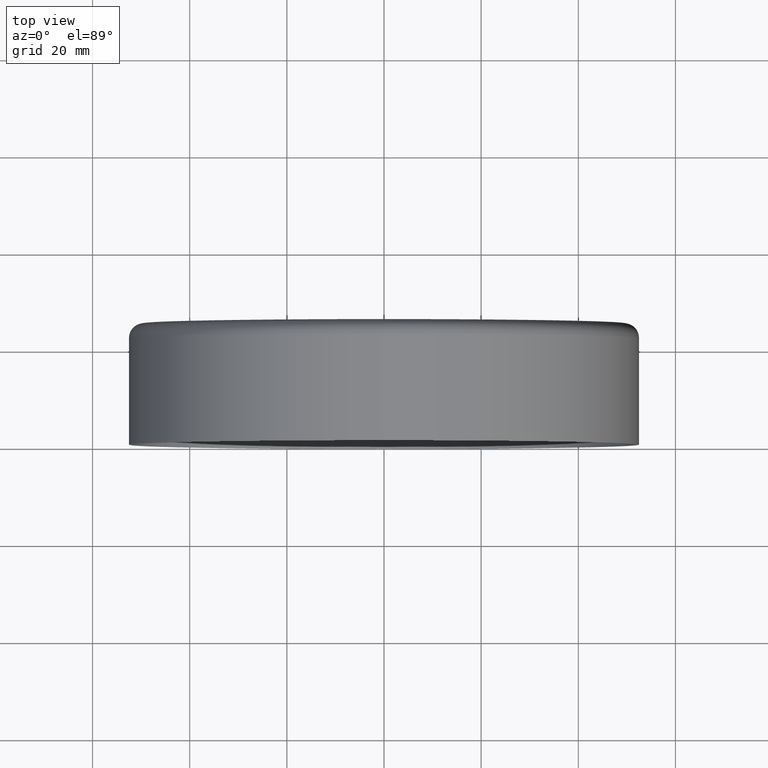
[diagram: clean part render]
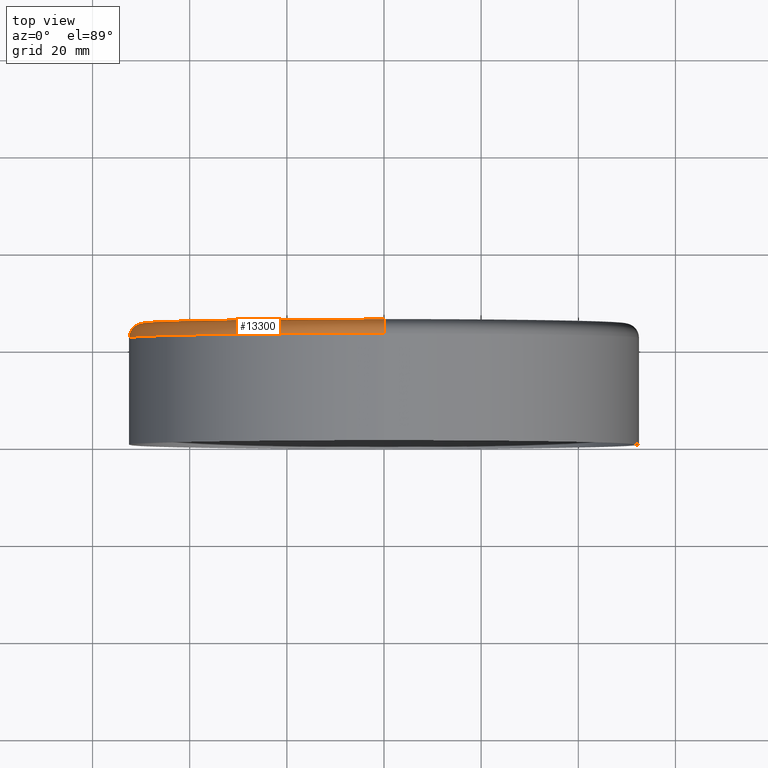
[diagram: same view with one face highlighted and labeled with its STEP entity id]
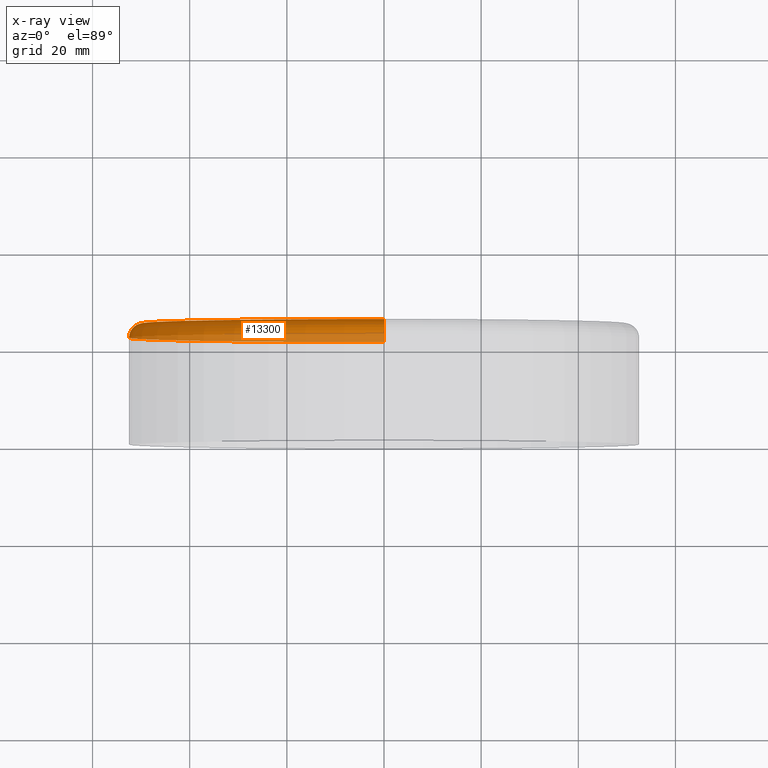
[diagram: x-ray of the same camera — body ghosted, the highlighted face saturated]
A machine part, top view. The second image highlights one B-rep face of the part: STEP entity #13300.
The next image is the same camera in x-ray: the body ghosted, the highlighted face saturated — about 33% of this face is hidden behind the body in this view.
In plain terms, the highlighted toroidal blend (fillet) surface has major radius 49.5 mm and minor (blend) radius 3 mm.
Its self-contained STEP definition (entity closure, byte-faithful):
#611 = CARTESIAN_POINT ( 'NONE',  ( 0.000000000000000000, 22.00000000000000355, -49.50000000000000000 ) ) ;
#651 = CARTESIAN_POINT ( 'NONE',  ( 0.000000000000000000, 22.00000000000000355, 0.000000000000000000 ) ) ;
#1155 = CARTESIAN_POINT ( 'NONE',  ( 0.000000000000000000, 25.00000000000000000, -49.50000000000000000 ) ) ;
#1349 = EDGE_CURVE ( 'NONE', #11369, #12837, #8977, .T. ) ;
#1871 = AXIS2_PLACEMENT_3D ( 'NONE', #651, #3751, #4829 ) ;
#1875 = ORIENTED_EDGE ( 'NONE', *, *, #1349, .F. ) ;
#2449 = FACE_OUTER_BOUND ( 'NONE', #6877, .T. ) ;
#3503 = EDGE_CURVE ( 'NONE', #11369, #10540, #5776, .T. ) ;
#3751 = DIRECTION ( 'NONE',  ( -0.000000000000000000, -1.000000000000000000, -0.000000000000000000 ) ) ;
#3976 = CARTESIAN_POINT ( 'NONE',  ( 6.062001655779398511E-15, 22.00000000000000355, 49.50000000000000000 ) ) ;
#4401 = EDGE_CURVE ( 'NONE', #10540, #9570, #7429, .T. ) ;
#4598 = EDGE_CURVE ( 'NONE', #12837, #9570, #10099, .T. ) ;
#4829 = DIRECTION ( 'NONE',  ( 0.000000000000000000, 0.000000000000000000, -1.000000000000000000 ) ) ;
#4982 = CARTESIAN_POINT ( 'NONE',  ( 6.429395695523604744E-15, 22.00000000000000355, 52.50000000000000711 ) ) ;
#5776 = CIRCLE ( 'NONE', #9518, 49.50000000000000000 ) ;
#6522 = DIRECTION ( 'NONE',  ( 0.000000000000000000, 0.000000000000000000, -1.000000000000000000 ) ) ;
#6877 = EDGE_LOOP ( 'NONE', ( #1875, #7453, #10682, #13024 ) ) ;
#6923 = AXIS2_PLACEMENT_3D ( 'NONE', #10896, #9686, #6522 ) ;
#7180 = DIRECTION ( 'NONE',  ( 0.000000000000000000, 0.000000000000000000, -1.000000000000000000 ) ) ;
#7429 = CIRCLE ( 'NONE', #11207, 3.000000000000002665 ) ;
#7453 = ORIENTED_EDGE ( 'NONE', *, *, #3503, .T. ) ;
#7506 = CARTESIAN_POINT ( 'NONE',  ( 6.245698675651501233E-15, 25.00000000000000000, 49.50000000000000000 ) ) ;
#8278 = DIRECTION ( 'NONE',  ( 1.000000000000000000, 0.000000000000000000, -1.224646799147353207E-16 ) ) ;
#8977 = CIRCLE ( 'NONE', #10205, 3.000000000000002665 ) ;
#8982 = TOROIDAL_SURFACE ( 'NONE', #1871, 49.50000000000000000, 3.000000000000000888 ) ;
#9199 = DIRECTION ( 'NONE',  ( -0.000000000000000000, -1.000000000000000000, -0.000000000000000000 ) ) ;
#9518 = AXIS2_PLACEMENT_3D ( 'NONE', #13413, #9199, #7180 ) ;
#9570 = VERTEX_POINT ( 'NONE', #9792 ) ;
#9686 = DIRECTION ( 'NONE',  ( -0.000000000000000000, -1.000000000000000000, -0.000000000000000000 ) ) ;
#9792 = CARTESIAN_POINT ( 'NONE',  ( 0.000000000000000000, 22.00000000000000355, -52.50000000000000711 ) ) ;
#10099 = CIRCLE ( 'NONE', #6923, 52.50000000000000711 ) ;
#10174 = DIRECTION ( 'NONE',  ( -1.000000000000000000, 0.000000000000000000, 0.000000000000000000 ) ) ;
#10205 = AXIS2_PLACEMENT_3D ( 'NONE', #3976, #8278, #12508 ) ;
#10219 = DIRECTION ( 'NONE',  ( 0.000000000000000000, 0.000000000000000000, 1.000000000000000000 ) ) ;
#10540 = VERTEX_POINT ( 'NONE', #1155 ) ;
#10682 = ORIENTED_EDGE ( 'NONE', *, *, #4401, .T. ) ;
#10896 = CARTESIAN_POINT ( 'NONE',  ( 0.000000000000000000, 22.00000000000000355, 0.000000000000000000 ) ) ;
#11207 = AXIS2_PLACEMENT_3D ( 'NONE', #611, #10174, #10219 ) ;
#11369 = VERTEX_POINT ( 'NONE', #7506 ) ;
#12508 = DIRECTION ( 'NONE',  ( -1.224646799147351975E-16, 0.000000000000000000, -1.000000000000000000 ) ) ;
#12837 = VERTEX_POINT ( 'NONE', #4982 ) ;
#13024 = ORIENTED_EDGE ( 'NONE', *, *, #4598, .F. ) ;
#13300 = ADVANCED_FACE ( 'NONE', ( #2449 ), #8982, .T. ) ;
#13413 = CARTESIAN_POINT ( 'NONE',  ( 0.000000000000000000, 25.00000000000000000, 0.000000000000000000 ) ) ;